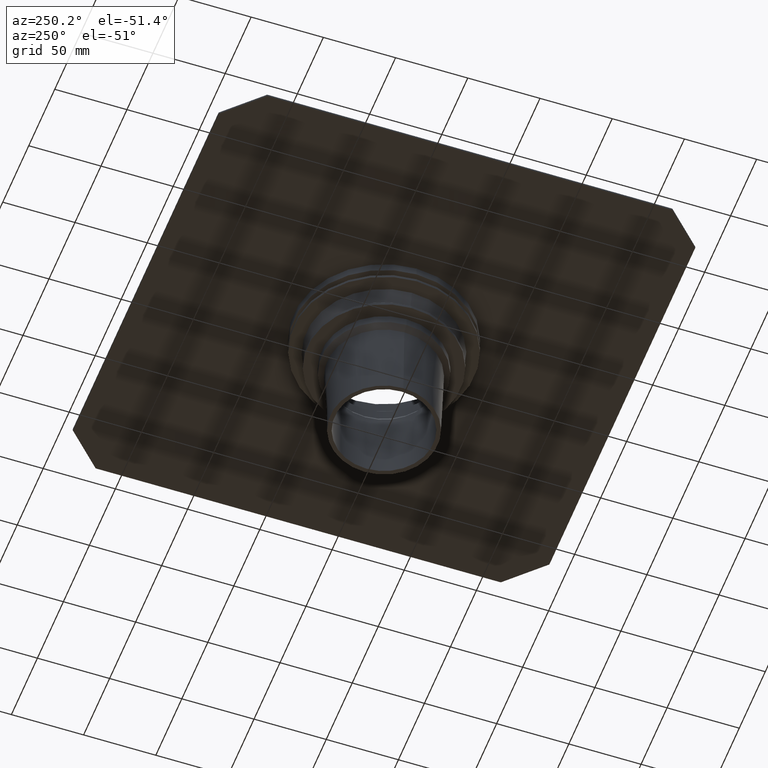
[diagram: clean part render]
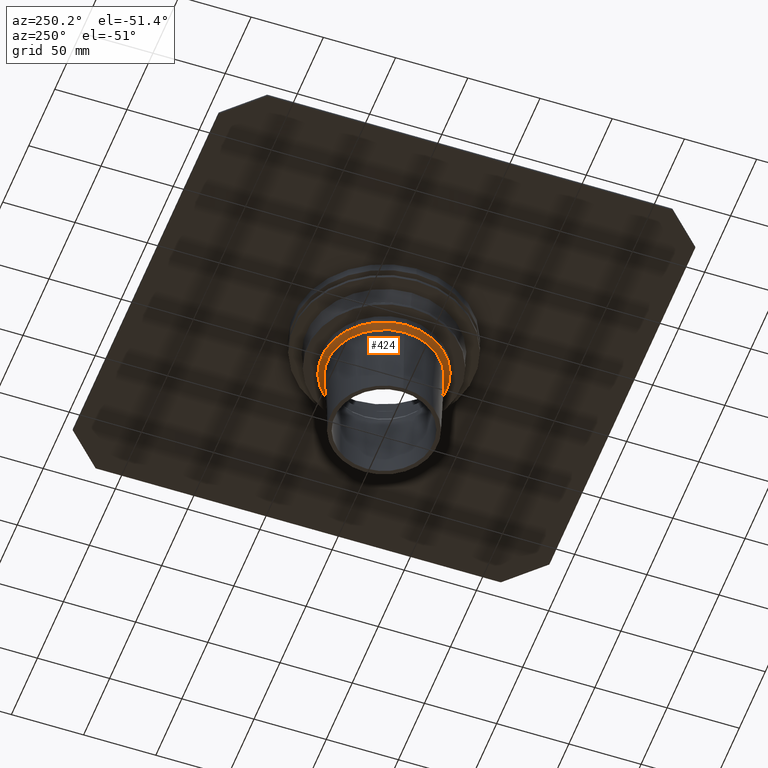
[diagram: same view with one face highlighted and labeled with its STEP entity id]
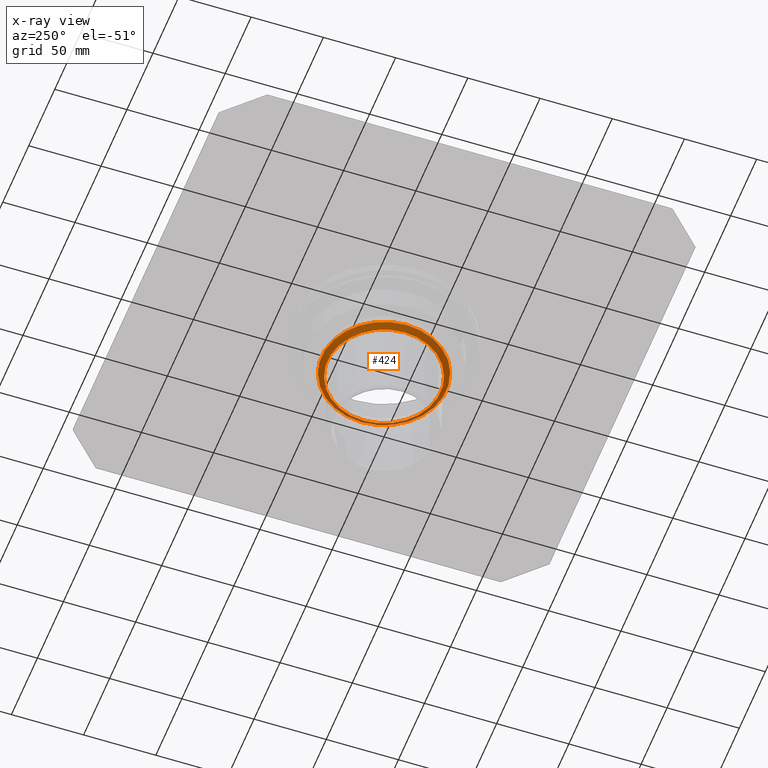
[diagram: x-ray of the same camera — body ghosted, the highlighted face saturated]
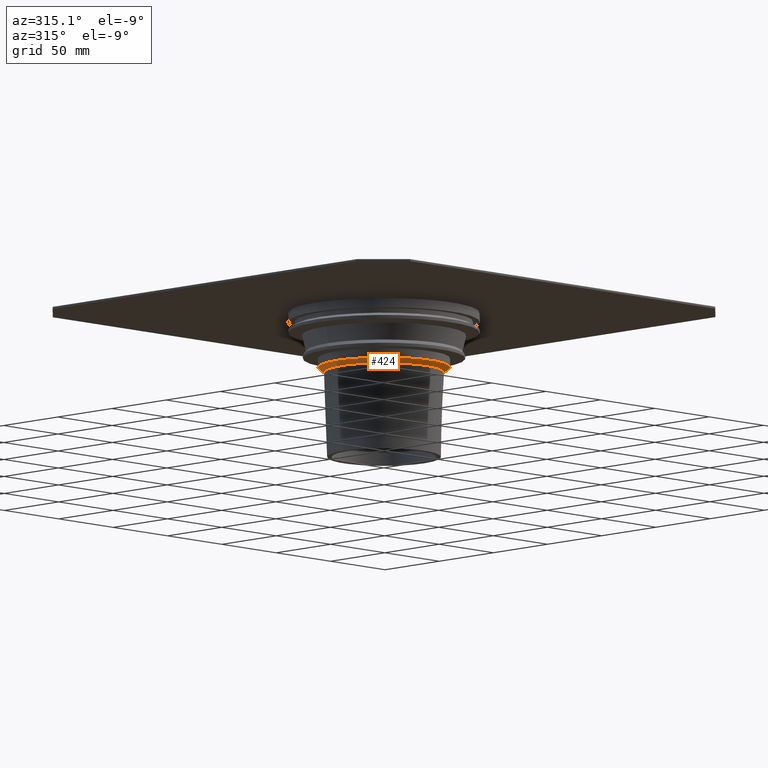
[diagram: same view with one face highlighted and labeled with its STEP entity id]
A machine part, auxiliary view. The second image highlights one B-rep face of the part: STEP entity #424.
The next image is the same camera in x-ray: the body ghosted, the highlighted face saturated — about 5% of this face is hidden behind the body in this view.
A second angle (auxiliary view) of the same face is appended — the face is thin or edge-on in the first view.
In plain terms, the highlighted conical surface has half-angle 53.13 deg.
Its self-contained STEP definition (entity closure, byte-faithful):
#24=CONICAL_SURFACE('',#481,39.143,0.927295218001613);
#146=ORIENTED_EDGE('',*,*,#221,.T.);
#147=ORIENTED_EDGE('',*,*,#220,.F.);
#220=EDGE_CURVE('',#258,#258,#280,.T.);
#221=EDGE_CURVE('',#259,#259,#281,.T.);
#258=VERTEX_POINT('',#719);
#259=VERTEX_POINT('',#722);
#280=CIRCLE('',#480,39.143);
#281=CIRCLE('',#482,43.143);
#320=EDGE_LOOP('',(#146));
#321=EDGE_LOOP('',(#147));
#374=FACE_BOUND('',#320,.T.);
#375=FACE_BOUND('',#321,.T.);
#424=ADVANCED_FACE('',(#374,#375),#24,.T.);
#480=AXIS2_PLACEMENT_3D('',#718,#590,#591);
#481=AXIS2_PLACEMENT_3D('',#720,#592,#593);
#482=AXIS2_PLACEMENT_3D('',#721,#594,#595);
#590=DIRECTION('',(0.,0.,-1.));
#591=DIRECTION('',(-1.,0.,0.));
#592=DIRECTION('',(0.,0.,1.));
#593=DIRECTION('',(1.,0.,0.));
#594=DIRECTION('',(0.,0.,-1.));
#595=DIRECTION('',(-1.,0.,0.));
#718=CARTESIAN_POINT('',(0.,0.,-39.));
#719=CARTESIAN_POINT('',(-39.143,0.,-39.));
#720=CARTESIAN_POINT('',(0.,0.,-39.));
#721=CARTESIAN_POINT('',(0.,0.,-36.));
#722=CARTESIAN_POINT('',(-43.143,0.,-36.));